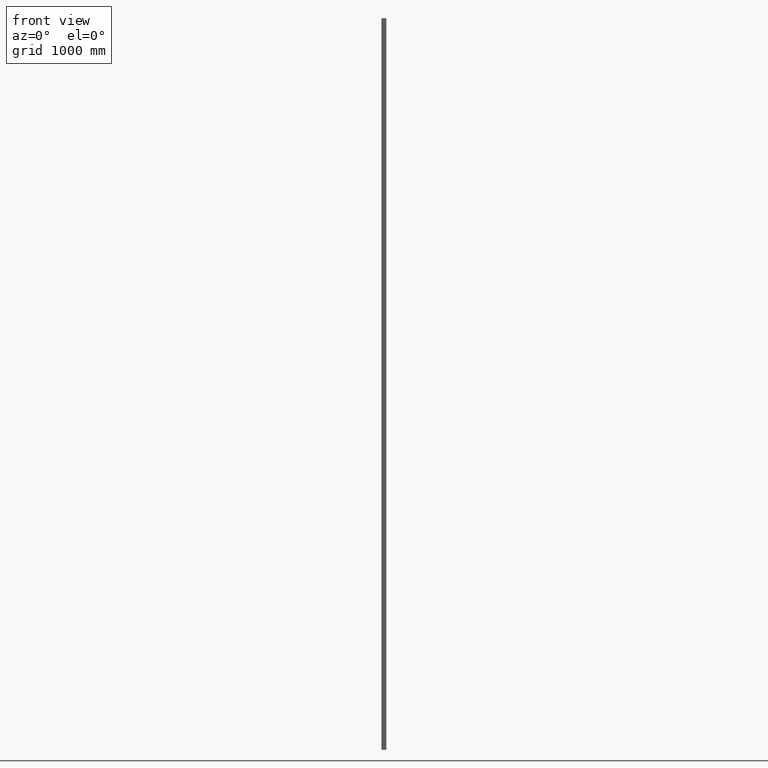
[diagram: clean part render]
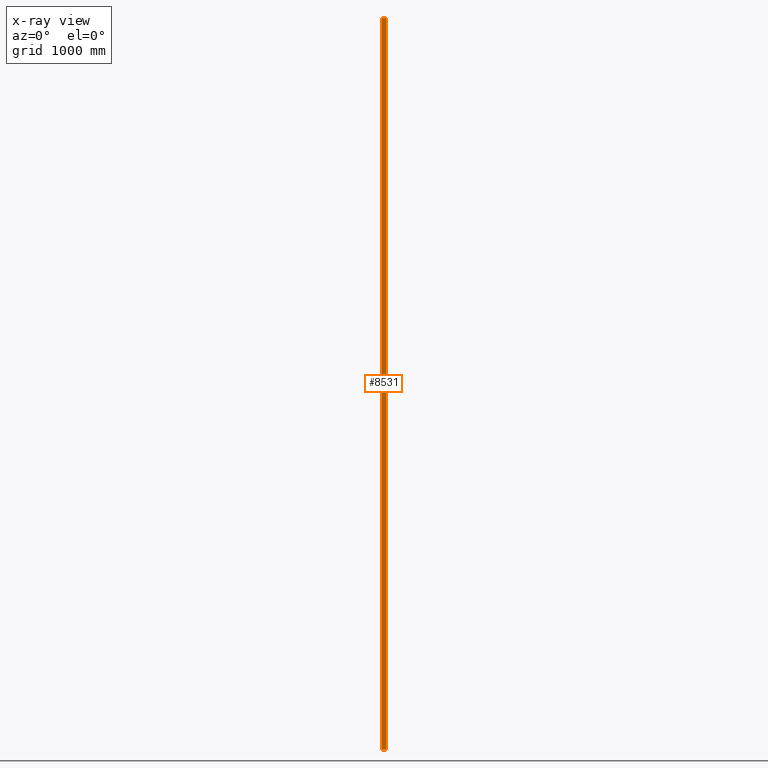
[diagram: x-ray — body ghosted, one internal face saturated and labeled with its STEP entity id]
A machine part, front view, then the same camera in x-ray: the body is ghosted and one INTERNAL B-rep face — a face not visible from any outside direction — is saturated and labeled: STEP entity #8531.
In plain terms, the highlighted planar face has unit normal (0, 1, 0).
Its self-contained STEP definition (entity closure, byte-faithful):
#438 = CARTESIAN_POINT ( 'NONE',  ( -16.99999999999999289, -18.00000000000000355, 3000.000000000000000 ) ) ;
#1238 = EDGE_LOOP ( 'NONE', ( #9463, #3061, #13498, #7308 ) ) ;
#1327 = DIRECTION ( 'NONE',  ( -0.000000000000000000, -0.000000000000000000, -1.000000000000000000 ) ) ;
#2223 = CARTESIAN_POINT ( 'NONE',  ( 17.00000000000000355, -18.00000000000000355, -3000.000000000000000 ) ) ;
#2414 = EDGE_CURVE ( 'NONE', #5991, #14041, #10905, .T. ) ;
#2418 = CARTESIAN_POINT ( 'NONE',  ( 17.00000000000000355, -18.00000000000000355, 3000.000000000000000 ) ) ;
#3061 = ORIENTED_EDGE ( 'NONE', *, *, #13116, .F. ) ;
#4054 = LINE ( 'NONE', #8056, #14170 ) ;
#4122 = VECTOR ( 'NONE', #11915, 1000.000000000000000 ) ;
#4283 = FACE_OUTER_BOUND ( 'NONE', #1238, .T. ) ;
#4524 = CARTESIAN_POINT ( 'NONE',  ( -16.99999999999999289, -18.00000000000000355, 3000.000000000000000 ) ) ;
#4570 = DIRECTION ( 'NONE',  ( 1.000000000000000000, 0.000000000000000000, 0.000000000000000000 ) ) ;
#4943 = CARTESIAN_POINT ( 'NONE',  ( -16.99999999999999289, -18.00000000000000355, 3000.000000000000000 ) ) ;
#5930 = CARTESIAN_POINT ( 'NONE',  ( 17.00000000000000355, -18.00000000000000355, 3000.000000000000000 ) ) ;
#5991 = VERTEX_POINT ( 'NONE', #4943 ) ;
#7081 = VECTOR ( 'NONE', #1327, 1000.000000000000000 ) ;
#7282 = PLANE ( 'NONE',  #12991 ) ;
#7308 = ORIENTED_EDGE ( 'NONE', *, *, #9692, .T. ) ;
#8056 = CARTESIAN_POINT ( 'NONE',  ( -16.99999999999999289, -18.00000000000000355, -3000.000000000000000 ) ) ;
#8531 = ADVANCED_FACE ( 'NONE', ( #4283 ), #7282, .T. ) ;
#8730 = DIRECTION ( 'NONE',  ( 0.000000000000000000, -0.000000000000000000, 1.000000000000000000 ) ) ;
#9442 = VERTEX_POINT ( 'NONE', #10902 ) ;
#9463 = ORIENTED_EDGE ( 'NONE', *, *, #9767, .F. ) ;
#9692 = EDGE_CURVE ( 'NONE', #14041, #13861, #12912, .T. ) ;
#9767 = EDGE_CURVE ( 'NONE', #9442, #13861, #4054, .T. ) ;
#10745 = VECTOR ( 'NONE', #11415, 1000.000000000000000 ) ;
#10902 = CARTESIAN_POINT ( 'NONE',  ( -16.99999999999999289, -18.00000000000000355, -3000.000000000000000 ) ) ;
#10905 = LINE ( 'NONE', #438, #10745 ) ;
#11415 = DIRECTION ( 'NONE',  ( 1.000000000000000000, 0.000000000000000000, 0.000000000000000000 ) ) ;
#11915 = DIRECTION ( 'NONE',  ( -0.000000000000000000, -0.000000000000000000, -1.000000000000000000 ) ) ;
#12150 = DIRECTION ( 'NONE',  ( 0.000000000000000000, 1.000000000000000000, 0.000000000000000000 ) ) ;
#12912 = LINE ( 'NONE', #2418, #7081 ) ;
#12991 = AXIS2_PLACEMENT_3D ( 'NONE', #13075, #12150, #8730 ) ;
#13039 = LINE ( 'NONE', #4524, #4122 ) ;
#13075 = CARTESIAN_POINT ( 'NONE',  ( -16.99999999999999289, -18.00000000000000355, 3000.000000000000000 ) ) ;
#13116 = EDGE_CURVE ( 'NONE', #5991, #9442, #13039, .T. ) ;
#13498 = ORIENTED_EDGE ( 'NONE', *, *, #2414, .T. ) ;
#13861 = VERTEX_POINT ( 'NONE', #2223 ) ;
#14041 = VERTEX_POINT ( 'NONE', #5930 ) ;
#14170 = VECTOR ( 'NONE', #4570, 1000.000000000000000 ) ;